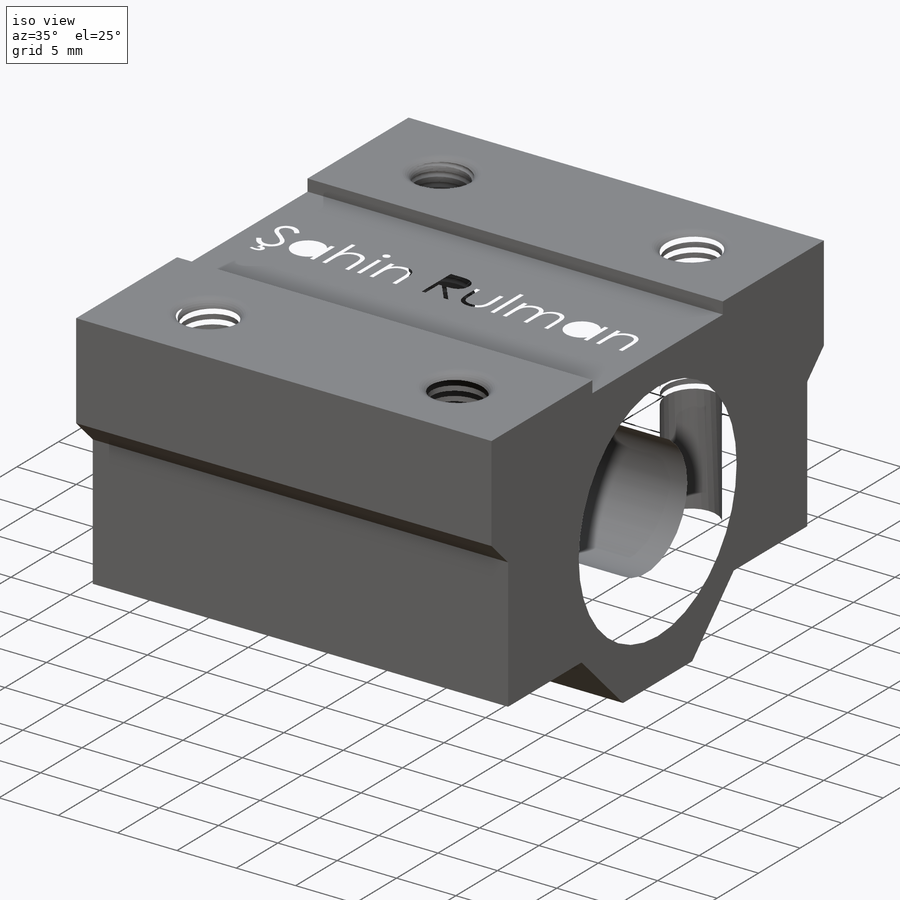
[diagram: iso view]
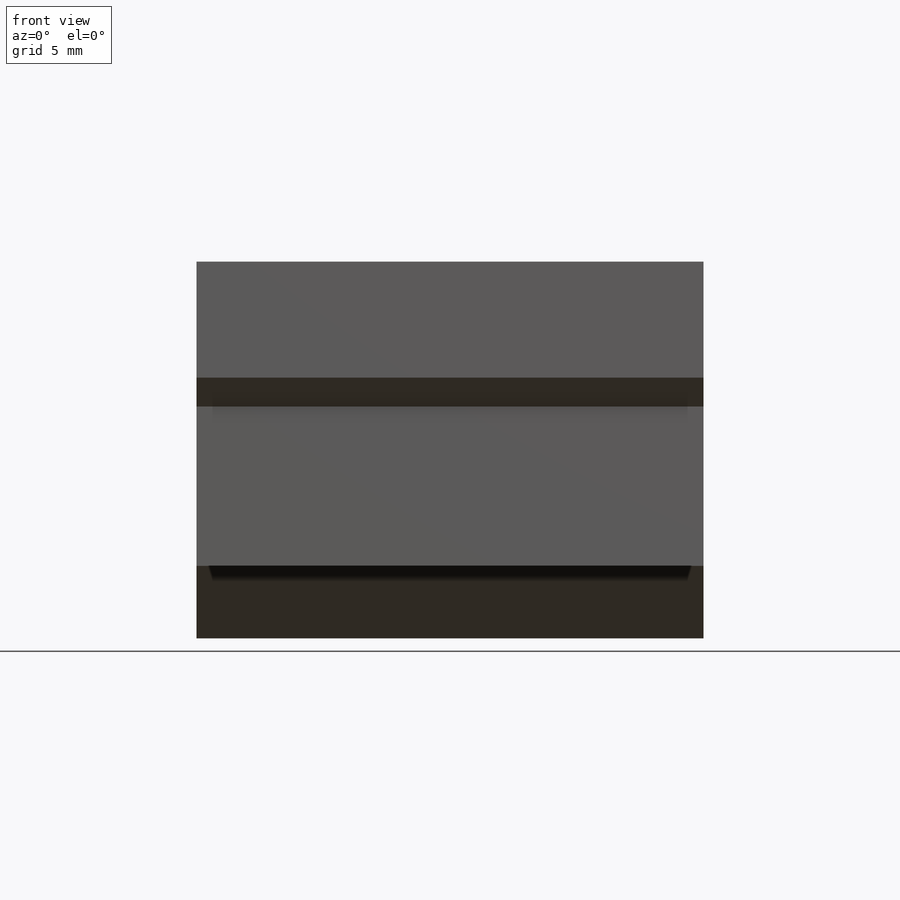
[diagram: front view]
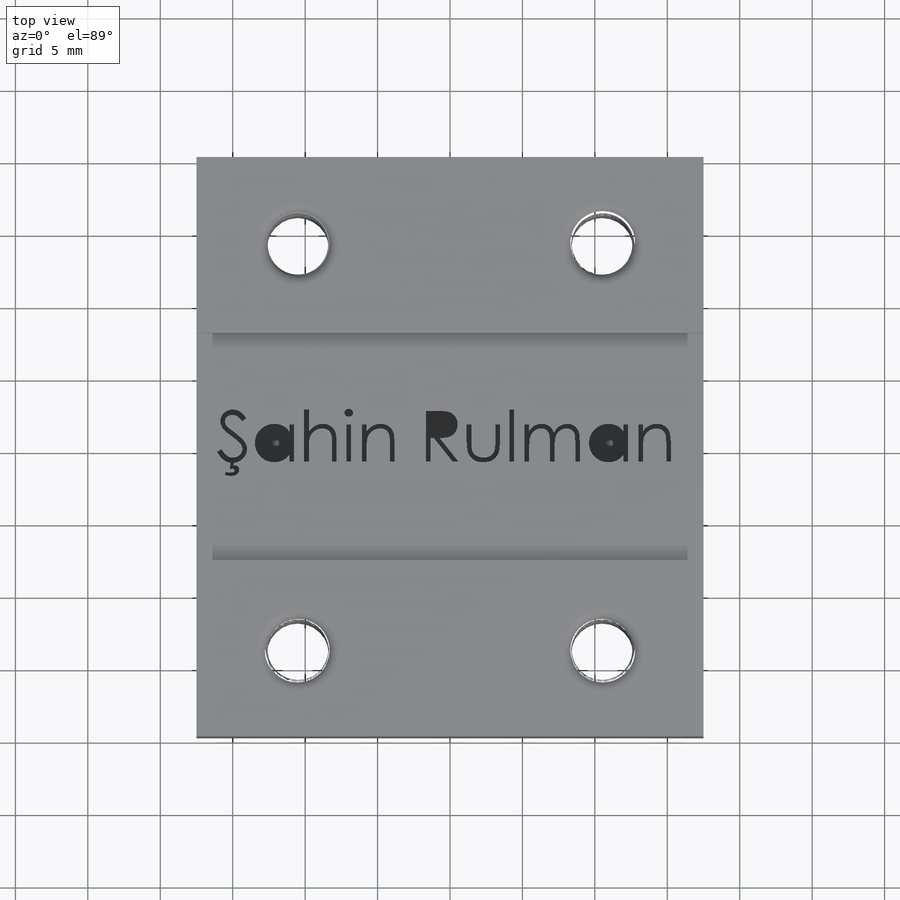
[diagram: top view]
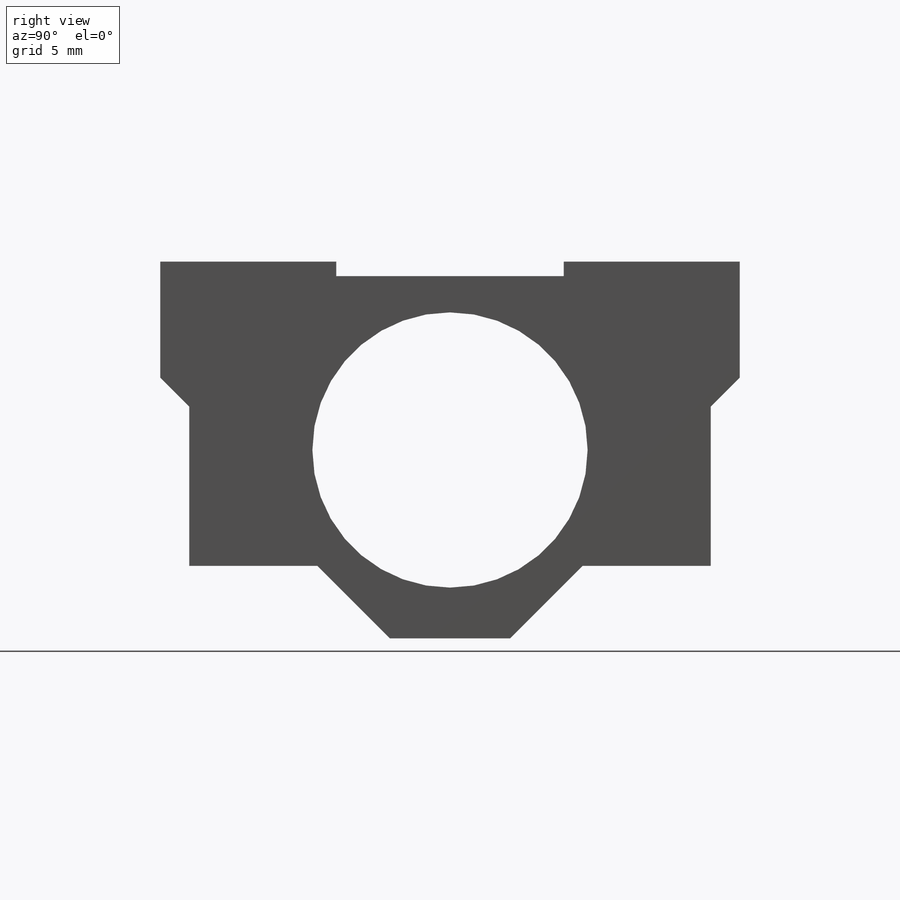
[diagram: right view]
SOLIDWORKS PART (.sldprt)
format: sldprt  version: not decoded by parser v0  size: 1,855,488 bytes
history: native  units: mm
features: sketch x8, cut_extrude x5, mirror x3, plane x2, material x1, extrude x1, fillet x1, helix x1, sweep x1 (+11 scaffold rows collapsed)
feature tree (34):
  scaffold x11  (default folders/planes/origin — collapsed)
  material  "Material <not specified>"
  sketch  "Sketch1"  dims[c1.D10=10.0mm c1.D1=40.0mm c1.D2=20.0mm c1.D3=26.0mm c1.D4=8.0mm c1.D5=21.0mm c1.D6=2.0mm c1.D7=2.0mm c1.D8=5.0mm c1.D9=6.0mm c2.D10=6.0mm c2.D2=1.0mm c2.D6=13.0mm c2.D11=2.15mm c2.D12=2.15mm c2.D13=4.0mm c2.D14=4.0mm]
  extrude  "Boss-Extrude1"  Depth=35mm
  plane  "Plane1"  Offset=8mm
  sketch  "Sketch3"  dims[D5=4.2mm D1=14.0mm D2=14.0mm D3=10.5mm D4=10.5mm]
  cut_extrude  "Cut-Extrude1"  Depth=16mm
  sketch  "Sketch4"  dims[D1=4.3mm]
  cut_extrude  "Cut-Extrude2"  Depth=26mm
  fillet  "Fillet1"  Radius=0.8mm
  sketch  "Sketch5"
  helix  "Helix/Spiral1"  Pitch=12mm
  plane  "Plane2"
  sketch  "Sketch6"  dims[D1=0.4mm]
  sweep  "Cut-Sweep1"
  mirror  "Mirror1"
  mirror  "Mirror2"
  sketch  "Sketch7"
  cut_extrude  "Cut-Extrude3"  Depth=2mm
  sketch  "Sketch8"
  cut_extrude  "Cut-Extrude4"  Depth=2mm
  sketch  "Sketch9"  dims[D1=19.0mm]
  cut_extrude  "Cut-Extrude5"  Depth=1mm
  mirror  "Mirror4"
decode coverage: 13 of 20 modeling features carry decoded parameters
note: suppression state not decoded; provenance and decode notes live in map.json
